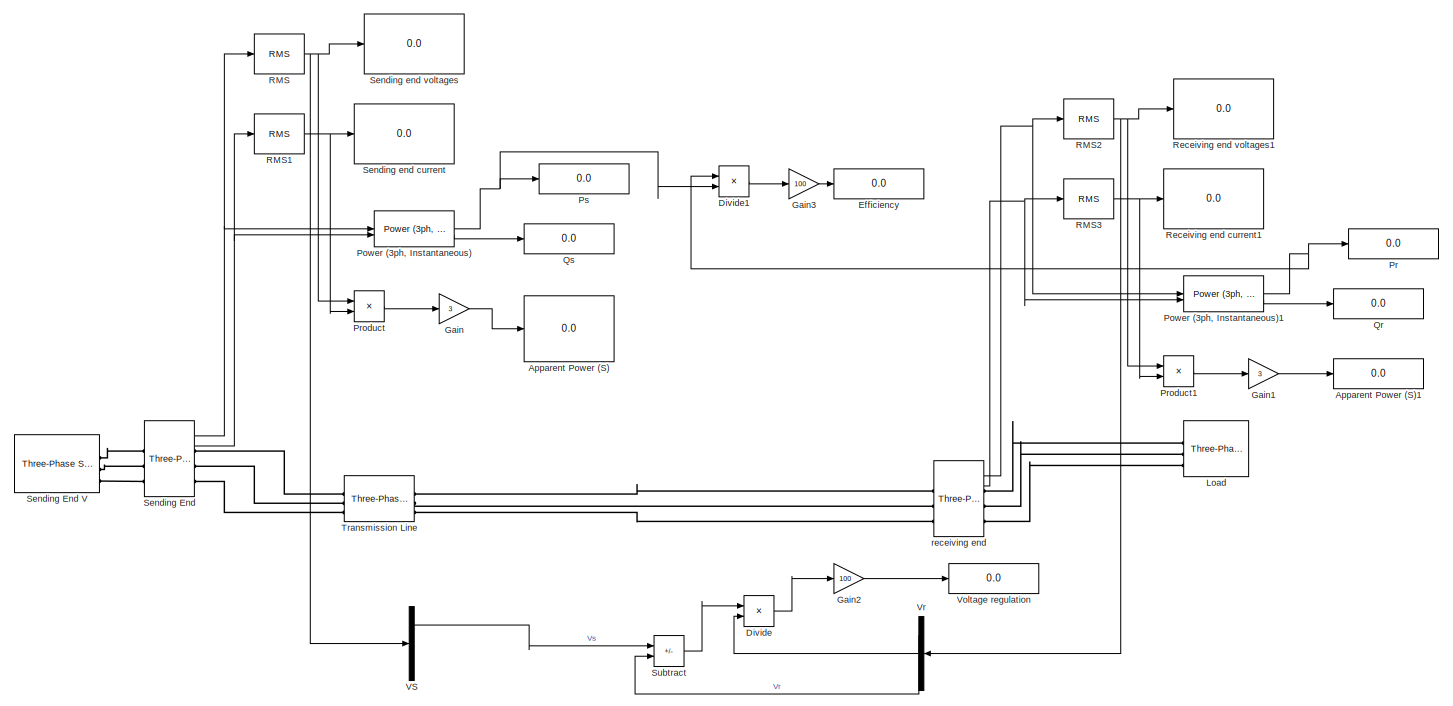
[diagram: root canvas - part 1/2, most of the canvas]
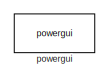
[diagram: root canvas - part 2/2, top right region]
MODEL slx_c587fa8106ab
KIND model
CONFIG AbsTol = auto
CONFIG EnableMultiTasking = off
CONFIG FixedStep = auto
CONFIG MaxStep = auto
CONFIG MinStep = auto
CONFIG RelTol = 1e-3
CONFIG SampleTimeConstraint = Unconstrained
CONFIG SolverName = VariableStepAuto
CONFIG StartTime = 0.0
CONFIG StopTime = 10.0
BLOCK [Display] Apparent Power (S)
  Decimation = 1
BLOCK [Display] Apparent Power (S)1
  Decimation = 1
BLOCK [Product] Divide
  Inputs = */
BLOCK [Product] Divide1
  Inputs = */
BLOCK [Display] Efficiency
  Decimation = 1
BLOCK [Gain] Gain
  Gain = 3
BLOCK [Gain] Gain1
  Gain = 3
BLOCK [Gain] Gain2
  Gain = 100
BLOCK [Gain] Gain3
  Gain = 100
BLOCK [Reference] Load  REF=spsThreePhaseParallelRLCLoadLib/Three-Phase
Parallel RLC Load
  AttributesFormatString = \n
  LibrarySourceBlock = sps_lib/Passives/Three-Phase\nParallel RLC Load
  NameLocation = right
  SourceBlock = spsThreePhaseParallelRLCLoadLib/Three-Phase\nParallel RLC Load
  SourceType = Three-Phase Parallel RLC Load
BLOCK [Reference] Power (3ph, Instantaneous)  REF=spsPower3phInstantaneousLib/Power
(3ph, Instantaneous)
  LibrarySourceBlock = sps_lib/Sensors and Measurements/Power\n(3ph, Instantaneous)
  SourceBlock = spsPower3phInstantaneousLib/Power\n(3ph, Instantaneous)
  SourceType = Power (3ph, Instantaneous)
BLOCK [Reference] Power (3ph, Instantaneous)1  REF=spsPower3phInstantaneousLib/Power
(3ph, Instantaneous)
  LibrarySourceBlock = sps_lib/Sensors and Measurements/Power\n(3ph, Instantaneous)
  SourceBlock = spsPower3phInstantaneousLib/Power\n(3ph, Instantaneous)
  SourceType = Power (3ph, Instantaneous)
BLOCK [Display] Pr
  Decimation = 1
BLOCK [Product] Product
BLOCK [Product] Product1
BLOCK [Display] Ps
  Decimation = 1
BLOCK [Display] Qr
  Decimation = 1
BLOCK [Display] Qs
  Decimation = 1
BLOCK [Reference] RMS  REF=spsRMSLib/RMS
  LibrarySourceBlock = sps_lib/Sensors and Measurements/RMS
  SourceBlock = spsRMSLib/RMS
  SourceType = RMS
BLOCK [Reference] RMS1  REF=spsRMSLib/RMS
  LibrarySourceBlock = sps_lib/Sensors and Measurements/RMS
  SourceBlock = spsRMSLib/RMS
  SourceType = RMS
BLOCK [Reference] RMS2  REF=spsRMSLib/RMS
  LibrarySourceBlock = sps_lib/Sensors and Measurements/RMS
  SourceBlock = spsRMSLib/RMS
  SourceType = RMS
BLOCK [Reference] RMS3  REF=spsRMSLib/RMS
  LibrarySourceBlock = sps_lib/Sensors and Measurements/RMS
  SourceBlock = spsRMSLib/RMS
  SourceType = RMS
BLOCK [Display] Receiving end current1
  Decimation = 1
BLOCK [Display] Receiving end voltages1
  Decimation = 1
BLOCK [Reference] Sending End  REF=spsThreePhaseVIMeasurementLib/Three-Phase
V-I Measurement
  LibrarySourceBlock = sps_lib/Sensors and Measurements/Three-Phase\nV-I Measurement
  SourceBlock = spsThreePhaseVIMeasurementLib/Three-Phase\nV-I Measurement
  SourceType = Three-Phase VI Measurement
BLOCK [Reference] Sending End V  REF=spsThreePhaseSourceLib/Three-Phase Source
  LibrarySourceBlock = sps_lib/Sources/Three-Phase Source
  SourceBlock = spsThreePhaseSourceLib/Three-Phase Source
  SourceType = Three-Phase Source
BLOCK [Display] Sending end current
  Decimation = 1
BLOCK [Display] Sending end voltages
  Decimation = 1
BLOCK [Sum] Subtract
  IconShape = rectangular
  Inputs = +-
BLOCK [Reference] Transmission Line  REF=spsThreePhaseSeriesRLCBranchLib/Three-Phase
Series RLC Branch
  AttributesFormatString = \n
  LibrarySourceBlock = sps_lib/Passives/Three-Phase\nSeries RLC Branch
  SourceBlock = spsThreePhaseSeriesRLCBranchLib/Three-Phase\nSeries RLC Branch
  SourceType = Three-Phase Series RLC Branch
BLOCK [Demux] VS
  Outputs = 3
BLOCK [Display] Voltage regulation
  Decimation = 1
BLOCK [Demux] Vr
  NameLocation = top
  Outputs = 3
BLOCK [Reference] powergui  REF=sps_lib/powergui
  LibrarySourceBlock = sps_lib/powergui
  Priority = 1
  SourceBlock = sps_lib/powergui
  SourceType = PSB option menu block
BLOCK [Reference] receiving end  REF=spsThreePhaseVIMeasurementLib/Three-Phase
V-I Measurement
  LibrarySourceBlock = sps_lib/Sensors and Measurements/Three-Phase\nV-I Measurement
  SourceBlock = spsThreePhaseVIMeasurementLib/Three-Phase\nV-I Measurement
  SourceType = Three-Phase VI Measurement
LINE Divide1:1 -> Gain3:1
LINE Divide:1 -> Gain2:1
LINE Gain1:1 -> Apparent Power (S)1:1
LINE Gain2:1 -> Voltage regulation:1
LINE Gain3:1 -> Efficiency:1
LINE Gain:1 -> Apparent Power (S):1
NET Power (3ph, Instantaneous)1:1 -> Divide1:1, Pr:1
LINE Power (3ph, Instantaneous)1:2 -> Qr:1
NET Power (3ph, Instantaneous):1 -> Divide1:2, Ps:1
LINE Power (3ph, Instantaneous):2 -> Qs:1
LINE Product1:1 -> Gain1:1
LINE Product:1 -> Gain:1
NET RMS1:1 -> Product:2, Sending end current:1
NET RMS2:1 -> Product1:1, Receiving end voltages1:1, Vr:1
NET RMS3:1 -> Product1:2, Receiving end current1:1
NET RMS:1 -> Product:1, Sending end voltages:1, VS:1
NET Sending End:1 -> Power (3ph, Instantaneous):1, RMS:1
NET Sending End:2 -> Power (3ph, Instantaneous):2, RMS1:1
LINE Subtract:1 -> Divide:1
LINE VS:1 -> Subtract:1
LINE Vr:1 -> Subtract:2
LINE Vr:2 -> Divide:2
NET receiving end:1 -> Power (3ph, Instantaneous)1:1, RMS2:1
NET receiving end:2 -> Power (3ph, Instantaneous)1:2, RMS3:1
PLINE Load:LConn1 -- receiving end:RConn1
PLINE Load:LConn2 -- receiving end:RConn2
PLINE Load:LConn3 -- receiving end:RConn3
PLINE Sending End V:RConn1 -- Sending End:LConn1
PLINE Sending End V:RConn2 -- Sending End:LConn2
PLINE Sending End V:RConn3 -- Sending End:LConn3
PLINE Sending End:RConn1 -- Transmission Line:LConn1
PLINE Sending End:RConn2 -- Transmission Line:LConn2
PLINE Sending End:RConn3 -- Transmission Line:LConn3
PLINE Transmission Line:RConn1 -- receiving end:LConn1
PLINE Transmission Line:RConn2 -- receiving end:LConn2
PLINE Transmission Line:RConn3 -- receiving end:LConn3
note: NET lines group one-source signal fan-out (src -> all destinations, sorted); 1:1 wires keep LINE
